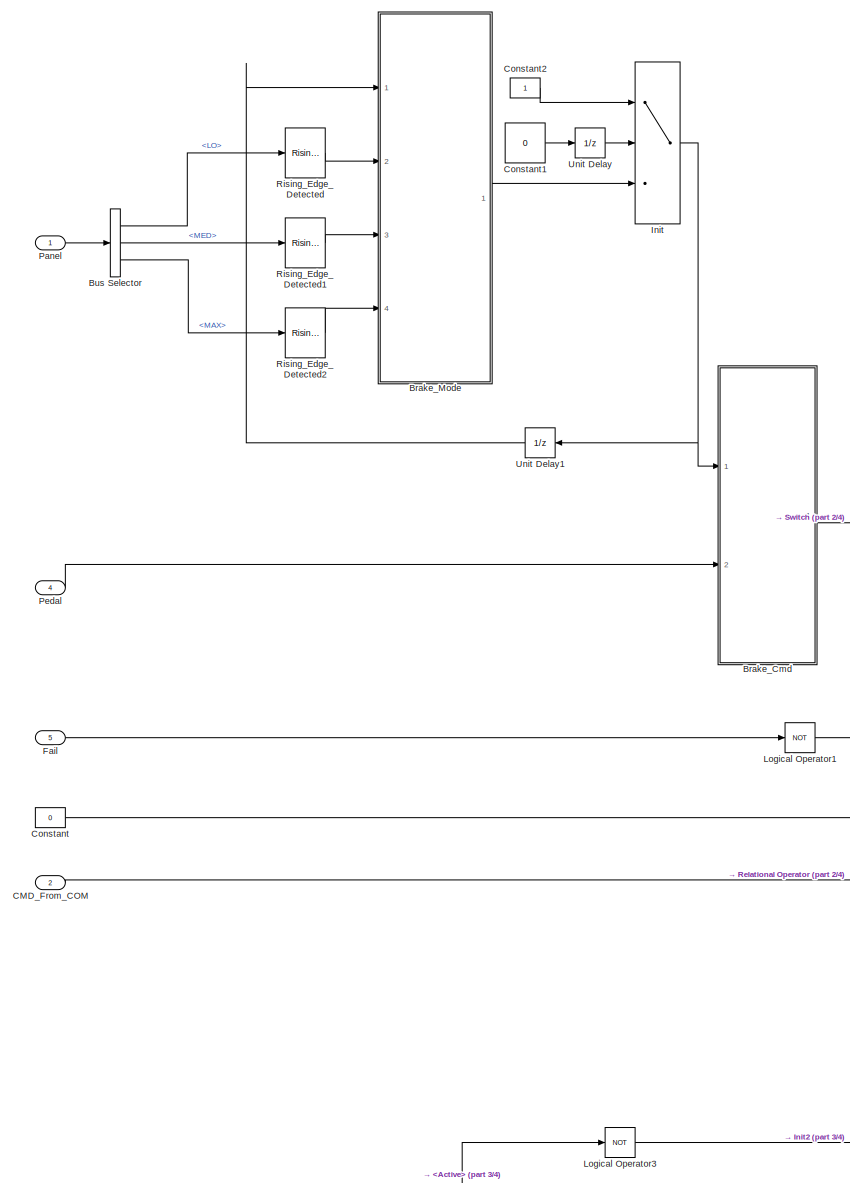
[diagram: root canvas - part 1/4, left side, full height]
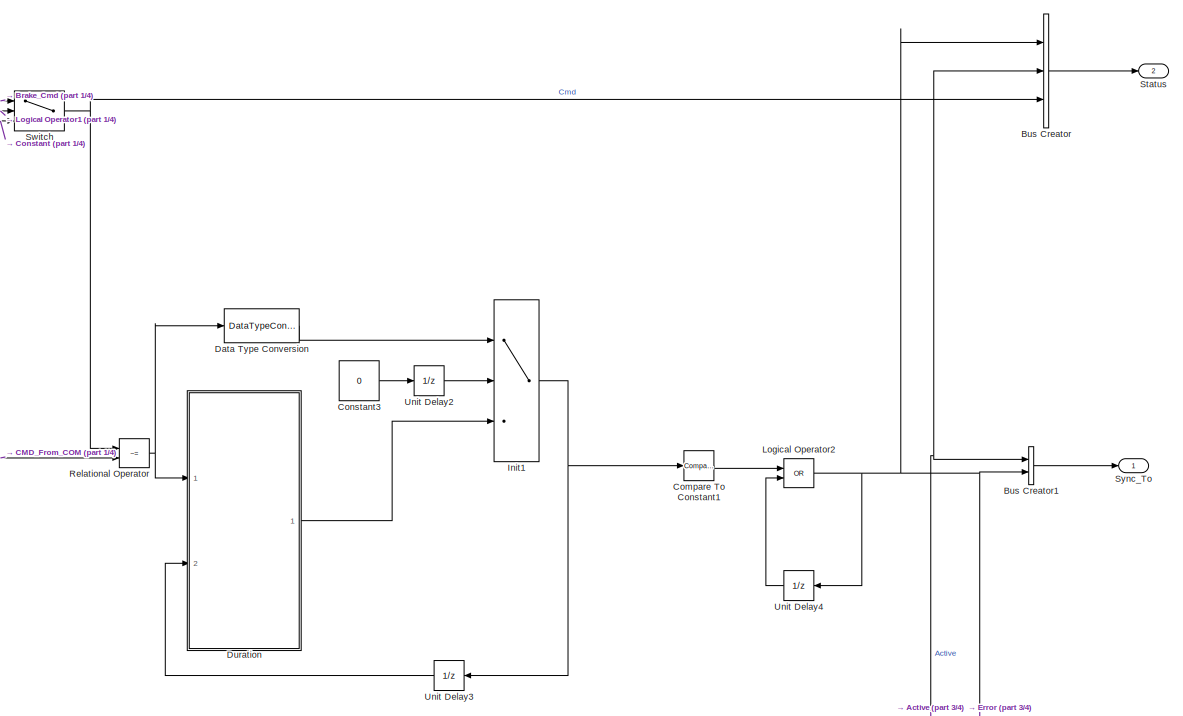
[diagram: root canvas - part 2/4, middle right region]
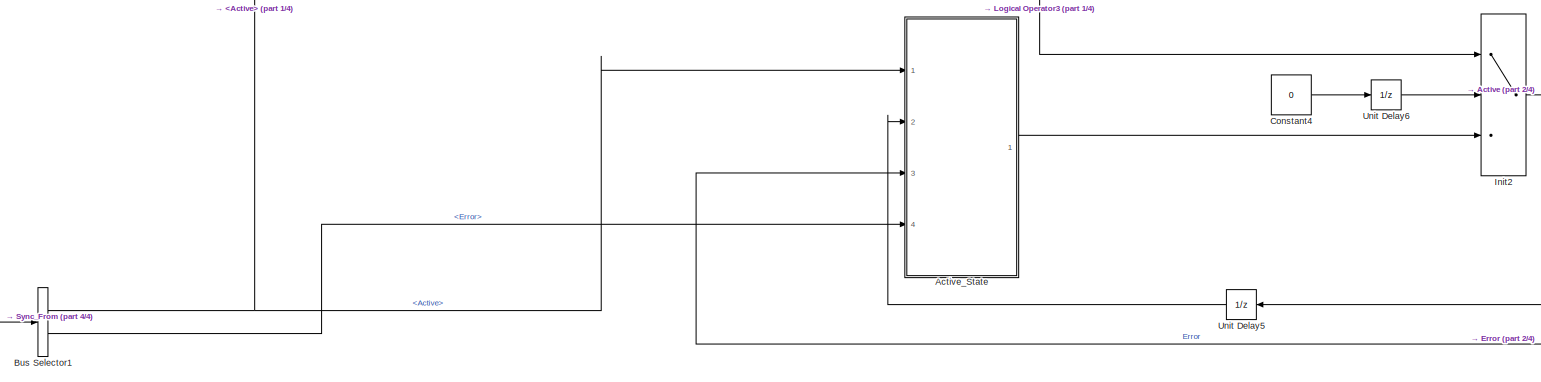
[diagram: root canvas - part 3/4, full width, bottom band]
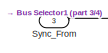
[diagram: root canvas - part 4/4, bottom left region]
MODEL slx_0b107e24533b
KIND model
CONFIG AbsTol = auto
CONFIG FixedStep = auto
CONFIG MaxStep = auto
CONFIG MinStep = auto
CONFIG RelTol = 1e-3
CONFIG SampleTimeConstraint = Unconstrained
CONFIG Solver = FixedStepDiscrete
CONFIG SolverMode = Auto
CONFIG SolverName = FixedStepDiscrete
CONFIG StartTime = 0.0
CONFIG StopTime = 10.0
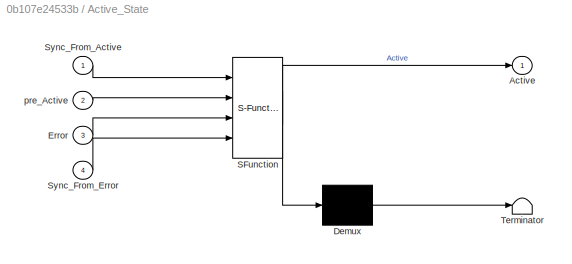
BLOCK [SubSystem] Active_State
  ErrorFcn = Stateflow.Translate.translate
  PermitHierarchicalResolution = ExplicitOnly
  Ports = [4, 1]
  RequestExecContextInheritance = off
  SFBlockType = Chart
  TreatAsAtomicUnit = on
  Variant = off
BLOCK [Demux] Active_State/ Demux 
  Outputs = 1
  Ports = [1, 1]
BLOCK [S-Function] Active_State/ SFunction 
  EnableBusSupport = on
  FunctionName = sf_sfun
  Parameters = Primary_Side
  PortCounts = [4 2]
  Ports = [4, 2]
  SFunctionDeploymentMode = off
  Tag = Stateflow S-Function MON_Functional 4
BLOCK [Terminator] Active_State/ Terminator 
BLOCK [Outport] Active_State/Active
  IconDisplay = Port number
BLOCK [Inport] Active_State/Error
  IconDisplay = Port number
  Port = 3
BLOCK [Inport] Active_State/Sync_From_Active
  IconDisplay = Port number
BLOCK [Inport] Active_State/Sync_From_Error
  IconDisplay = Port number
  Port = 4
BLOCK [Inport] Active_State/pre_Active
  IconDisplay = Port number
  Port = 2
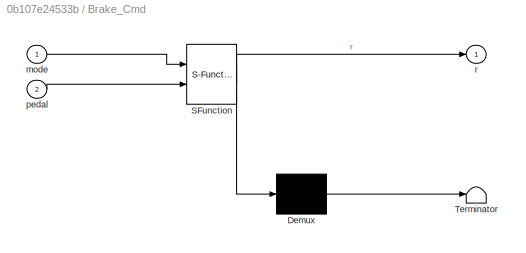
BLOCK [SubSystem] Brake_Cmd
  ErrorFcn = Stateflow.Translate.translate
  PermitHierarchicalResolution = ExplicitOnly
  Ports = [2, 1]
  RequestExecContextInheritance = off
  SFBlockType = Chart
  TreatAsAtomicUnit = on
  Variant = off
BLOCK [Demux] Brake_Cmd/ Demux 
  Outputs = 1
  Ports = [1, 1]
BLOCK [S-Function] Brake_Cmd/ SFunction 
  EnableBusSupport = on
  FunctionName = sf_sfun
  Parameters = BRAKE_PRESSURE_LO,BRAKE_PRESSURE_MAX,BRAKE_PRESSURE_MED,LO,MANUAL,MAX,MED
  PortCounts = [2 2]
  Ports = [2, 2]
  SFunctionDeploymentMode = off
  Tag = Stateflow S-Function MON_Functional 1
BLOCK [Terminator] Brake_Cmd/ Terminator 
BLOCK [Inport] Brake_Cmd/mode
  IconDisplay = Port number
BLOCK [Inport] Brake_Cmd/pedal
  IconDisplay = Port number
  Port = 2
BLOCK [Outport] Brake_Cmd/r
  IconDisplay = Port number
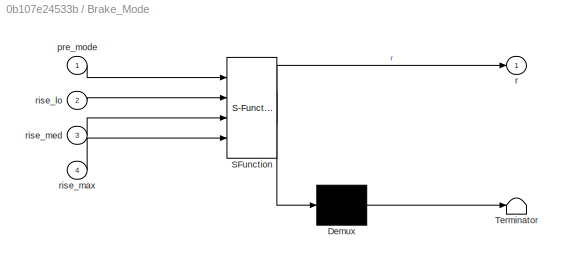
BLOCK [SubSystem] Brake_Mode
  ErrorFcn = Stateflow.Translate.translate
  PermitHierarchicalResolution = ExplicitOnly
  Ports = [4, 1]
  RequestExecContextInheritance = off
  SFBlockType = Chart
  TreatAsAtomicUnit = on
  Variant = off
BLOCK [Demux] Brake_Mode/ Demux 
  Outputs = 1
  Ports = [1, 1]
BLOCK [S-Function] Brake_Mode/ SFunction 
  EnableBusSupport = on
  FunctionName = sf_sfun
  Parameters = LO,MANUAL,MAX,MED
  PortCounts = [4 2]
  Ports = [4, 2]
  SFunctionDeploymentMode = off
  Tag = Stateflow S-Function MON_Functional 2
BLOCK [Terminator] Brake_Mode/ Terminator 
BLOCK [Inport] Brake_Mode/pre_mode
  IconDisplay = Port number
BLOCK [Outport] Brake_Mode/r
  IconDisplay = Port number
BLOCK [Inport] Brake_Mode/rise_lo
  IconDisplay = Port number
  Port = 2
BLOCK [Inport] Brake_Mode/rise_max
  IconDisplay = Port number
  Port = 4
BLOCK [Inport] Brake_Mode/rise_med
  IconDisplay = Port number
  Port = 3
BLOCK [BusCreator] Bus Creator
  DisplayOption = bar
  InheritFromInputs = on
  Inputs = 'Error','Active','Cmd'
  NonVirtualBus = on
  OutDataTypeStr = Bus: ChannelStatusImpl
  Ports = [3, 1]
BLOCK [BusCreator] Bus Creator1
  DisplayOption = bar
  InheritFromInputs = on
  Inputs = 'Active','Error'
  NonVirtualBus = on
  OutDataTypeStr = Bus: SyncMsgImpl
  Ports = [2, 1]
BLOCK [BusSelector] Bus Selector
  OutputSignals = LO,MED,MAX
  Ports = [1, 3]
BLOCK [BusSelector] Bus Selector1
  OutputSignals = Active,Error
  Ports = [1, 2]
BLOCK [Inport] CMD_From_COM
  IconDisplay = Port number
  OutDataTypeStr = int32
  Port = 2
BLOCK [Reference] Compare To Constant1  REF=simulink/Logic and Bit
Operations/Compare
To Constant
  Ports = [1, 1]
  SourceBlock = simulink/Logic and Bit\nOperations/Compare\nTo Constant
  SourceType = Compare To Constant
BLOCK [Constant] Constant
  OutDataTypeStr = int32
  Value = 0
BLOCK [Constant] Constant1
  DisableCoverage = on
  OutDataTypeStr = boolean
  Value = 0
BLOCK [Constant] Constant2
  OutDataTypeStr = int32
BLOCK [Constant] Constant3
  DisableCoverage = on
  OutDataTypeStr = boolean
  Value = 0
BLOCK [Constant] Constant4
  DisableCoverage = on
  OutDataTypeStr = boolean
  Value = 0
BLOCK [DataTypeConversion] Data Type Conversion
  OutDataTypeStr = int32
  RndMeth = Floor
  SaturateOnIntegerOverflow = off
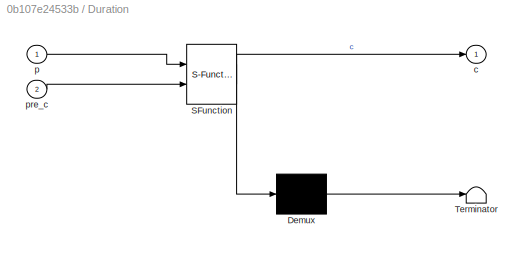
BLOCK [SubSystem] Duration
  ErrorFcn = Stateflow.Translate.translate
  PermitHierarchicalResolution = ExplicitOnly
  Ports = [2, 1]
  RequestExecContextInheritance = off
  SFBlockType = Chart
  TreatAsAtomicUnit = on
  Variant = off
BLOCK [Demux] Duration/ Demux 
  Outputs = 1
  Ports = [1, 1]
BLOCK [S-Function] Duration/ SFunction 
  EnableBusSupport = on
  FunctionName = sf_sfun
  PortCounts = [2 2]
  Ports = [2, 2]
  SFunctionDeploymentMode = off
  Tag = Stateflow S-Function MON_Functional 3
BLOCK [Terminator] Duration/ Terminator 
BLOCK [Outport] Duration/c
  IconDisplay = Port number
BLOCK [Inport] Duration/p
  IconDisplay = Port number
BLOCK [Inport] Duration/pre_c
  IconDisplay = Port number
  Port = 2
BLOCK [Inport] Fail
  IconDisplay = Port number
  OutDataTypeStr = boolean
  Port = 5
BLOCK [Switch] Init
  Criteria = u2 ~= 0
  OutDataTypeStr = Inherit: Inherit via back propagation
  SaturateOnIntegerOverflow = off
  ZeroCross = off
BLOCK [Switch] Init1
  Criteria = u2 ~= 0
  OutDataTypeStr = Inherit: Inherit via back propagation
  SaturateOnIntegerOverflow = off
  ZeroCross = off
BLOCK [Switch] Init2
  Criteria = u2 ~= 0
  OutDataTypeStr = Inherit: Inherit via back propagation
  SaturateOnIntegerOverflow = off
  ZeroCross = off
BLOCK [Logic] Logical Operator1
  Operator = NOT
  OutDataTypeStr = boolean
  Ports = [1, 1]
BLOCK [Logic] Logical Operator2
  Operator = OR
  OutDataTypeStr = boolean
  Ports = [2, 1]
BLOCK [Logic] Logical Operator3
  Operator = NOT
  OutDataTypeStr = boolean
  Ports = [1, 1]
BLOCK [Inport] Panel
  IconDisplay = Port number
  OutDataTypeStr = Bus: PanelMsgImpl
BLOCK [Inport] Pedal
  IconDisplay = Port number
  OutDataTypeStr = int32
  Port = 4
BLOCK [RelationalOperator] Relational Operator
  Operator = ~=
  OutDataTypeStr = boolean
  Ports = [2, 1]
  ZeroCross = off
BLOCK [Reference] Rising_Edge_Detected  REF=BSCU_lib/Rising_Edge_Detected
  Ports = [1, 1]
  SourceBlock = BSCU_lib/Rising_Edge_Detected
  SourceType = SubSystem
BLOCK [Reference] Rising_Edge_Detected1  REF=BSCU_lib/Rising_Edge_Detected
  Ports = [1, 1]
  SourceBlock = BSCU_lib/Rising_Edge_Detected
  SourceType = SubSystem
BLOCK [Reference] Rising_Edge_Detected2  REF=BSCU_lib/Rising_Edge_Detected
  Ports = [1, 1]
  SourceBlock = BSCU_lib/Rising_Edge_Detected
  SourceType = SubSystem
BLOCK [Outport] Status
  IconDisplay = Port number
  OutDataTypeStr = Bus: ChannelStatusImpl
  Port = 2
BLOCK [Switch] Switch
  Description = May be used within well defined functions, or functions that soley define logical expressions.
  SaturateOnIntegerOverflow = off
  Threshold = .5
  ZeroCross = off
BLOCK [Inport] Sync_From
  IconDisplay = Port number
  OutDataTypeStr = Bus: SyncMsgImpl
  Port = 3
BLOCK [Outport] Sync_To
  IconDisplay = Port number
  OutDataTypeStr = Bus: SyncMsgImpl
BLOCK [UnitDelay] Unit Delay
  AttributesFormatString = <Init = %<InitialCondition>>
  InitialCondition = 1
  InputProcessing = Elements as channels (sample based)
  SampleTime = -1
BLOCK [UnitDelay] Unit Delay1
  AttributesFormatString = <Init = %<InitialCondition>>
  InitialCondition = 1
  InputProcessing = Elements as channels (sample based)
  SampleTime = -1
BLOCK [UnitDelay] Unit Delay2
  AttributesFormatString = <Init = %<InitialCondition>>
  InitialCondition = 1
  InputProcessing = Elements as channels (sample based)
  SampleTime = -1
BLOCK [UnitDelay] Unit Delay3
  AttributesFormatString = <Init = %<InitialCondition>>
  InputProcessing = Elements as channels (sample based)
  SampleTime = -1
BLOCK [UnitDelay] Unit Delay4
  AttributesFormatString = <Init = %<InitialCondition>>
  InputProcessing = Elements as channels (sample based)
  SampleTime = -1
BLOCK [UnitDelay] Unit Delay5
  AttributesFormatString = <Init = %<InitialCondition>>
  InputProcessing = Elements as channels (sample based)
  SampleTime = -1
BLOCK [UnitDelay] Unit Delay6
  AttributesFormatString = <Init = %<InitialCondition>>
  InitialCondition = 1
  InputProcessing = Elements as channels (sample based)
  SampleTime = -1
LINE Active_State:1 -> Init2:3
LINE Brake_Cmd:1 -> Switch:1
LINE Brake_Mode:1 -> Init:3
LINE Bus Creator1:1 -> Sync_To:1
LINE Bus Creator:1 -> Status:1
NET Bus Selector1:1 -> Active_State:1, Logical Operator3:1
LINE Bus Selector1:2 -> Active_State:4
LINE Bus Selector:1 -> Rising_Edge_Detected:1
LINE Bus Selector:2 -> Rising_Edge_Detected1:1
LINE Bus Selector:3 -> Rising_Edge_Detected2:1
LINE CMD_From_COM:1 -> Relational Operator:2
LINE Compare To Constant1:1 -> Logical Operator2:1
LINE Constant1:1 -> Unit Delay:1
LINE Constant2:1 -> Init:1
LINE Constant3:1 -> Unit Delay2:1
LINE Constant4:1 -> Unit Delay6:1
LINE Constant:1 -> Switch:3
LINE Data Type Conversion:1 -> Init1:1
LINE Duration:1 -> Init1:3
LINE Fail:1 -> Logical Operator1:1
NET Init1:1 -> Compare To Constant1:1, Unit Delay3:1
NET Init2:1 -> Bus Creator1:1, Bus Creator:2, Unit Delay5:1
NET Init:1 -> Brake_Cmd:1, Unit Delay1:1
LINE Logical Operator1:1 -> Switch:2
NET Logical Operator2:1 -> Active_State:3, Bus Creator1:2, Bus Creator:1, Unit Delay4:1
LINE Logical Operator3:1 -> Init2:1
LINE Panel:1 -> Bus Selector:1
LINE Pedal:1 -> Brake_Cmd:2
NET Relational Operator:1 -> Data Type Conversion:1, Duration:1
LINE Rising_Edge_Detected1:1 -> Brake_Mode:3
LINE Rising_Edge_Detected2:1 -> Brake_Mode:4
LINE Rising_Edge_Detected:1 -> Brake_Mode:2
NET Switch:1 -> Bus Creator:3, Relational Operator:1
LINE Sync_From:1 -> Bus Selector1:1
LINE Unit Delay1:1 -> Brake_Mode:1
LINE Unit Delay2:1 -> Init1:2
LINE Unit Delay3:1 -> Duration:2
LINE Unit Delay4:1 -> Logical Operator2:2
LINE Unit Delay5:1 -> Active_State:2
LINE Unit Delay6:1 -> Init2:2
LINE Unit Delay:1 -> Init:2
note: NET lines group one-source signal fan-out (src -> all destinations, sorted); 1:1 wires keep LINE
CHART Brake_Cmd states=0 transitions=15
CHART Brake_Mode states=0 transitions=18
CHART Duration states=0 transitions=6
CHART Active_State states=0 transitions=14
